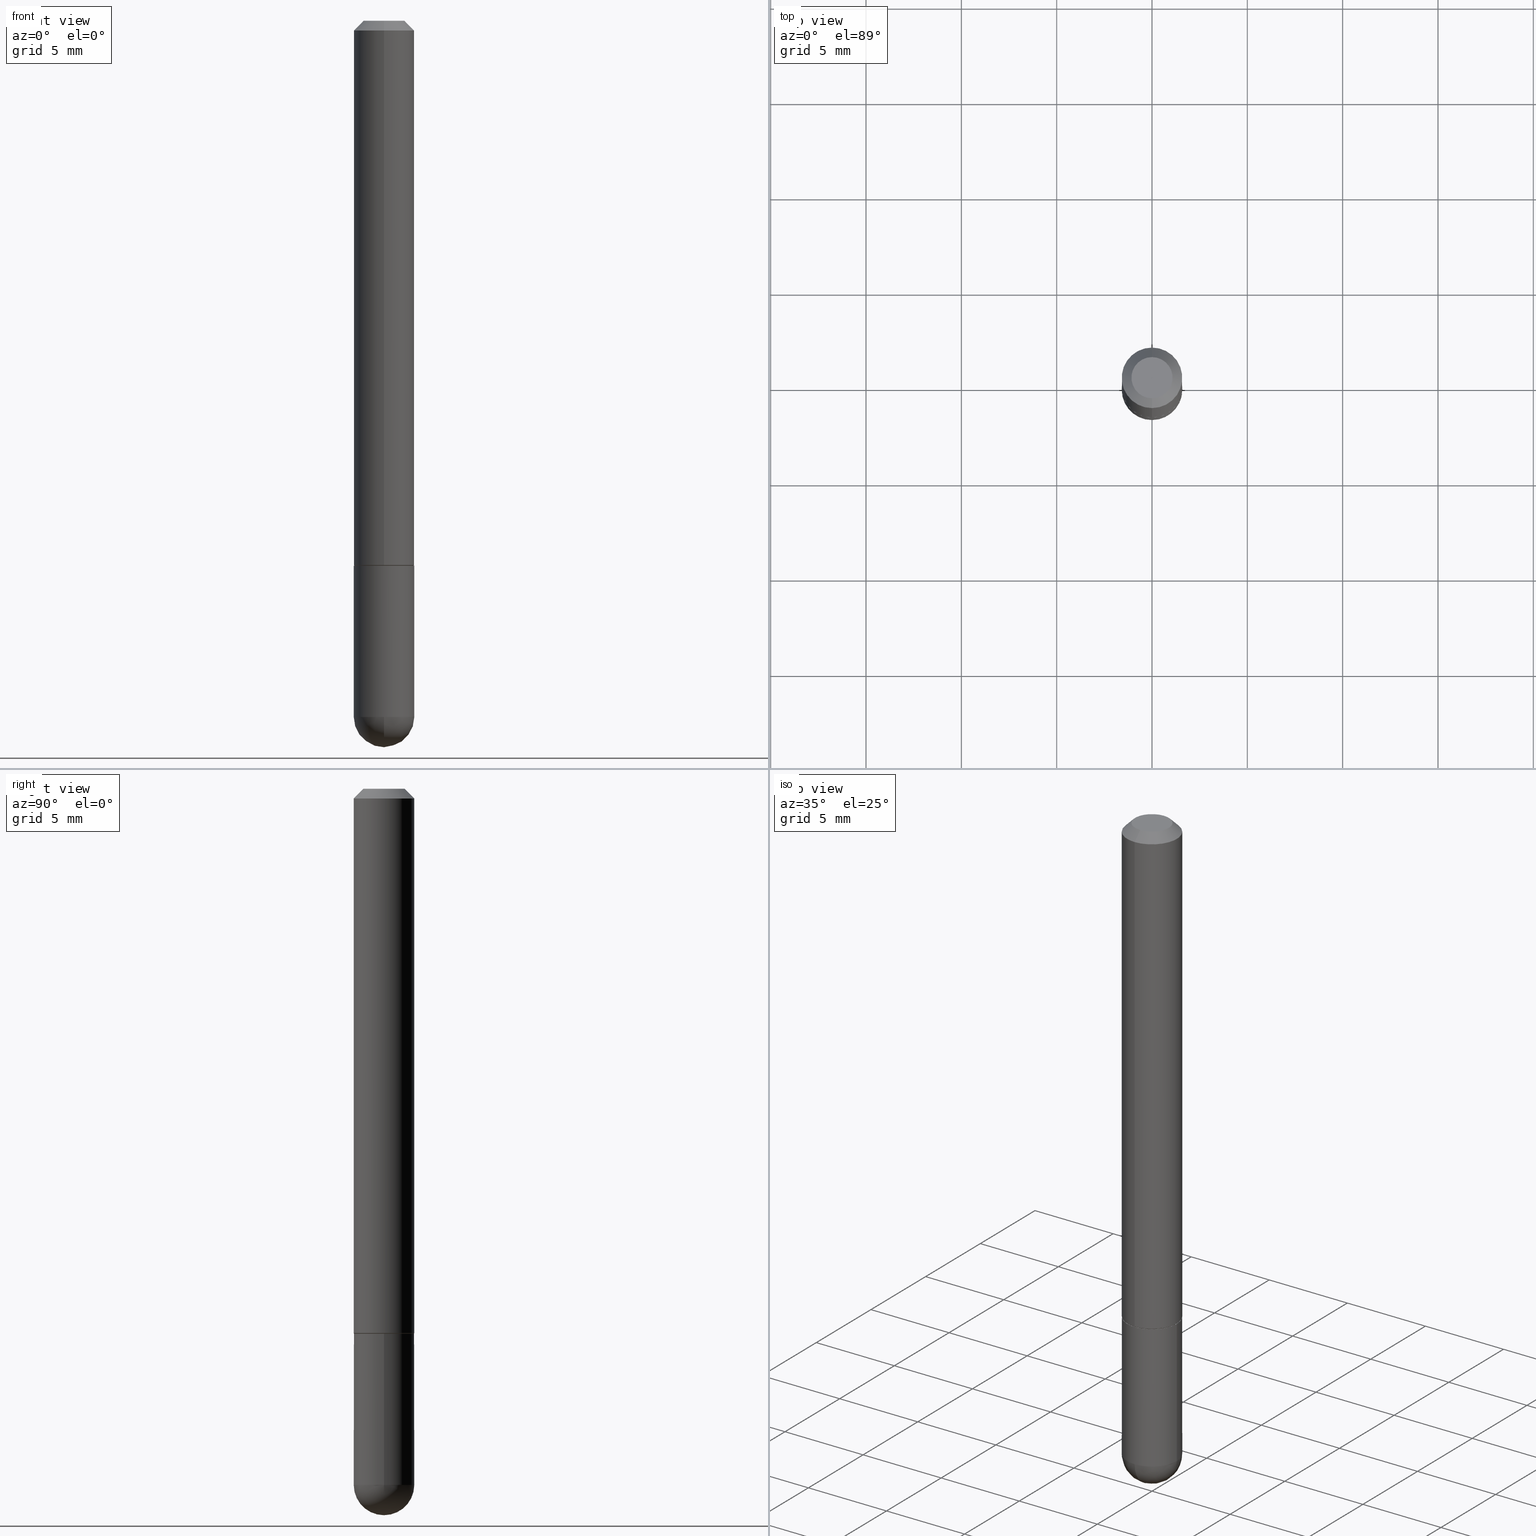
[diagram: canonical four-view strip — front | top / right | iso, engineering-drawing reading convention]
A machine part, canonical four-view strip (front | top / right | iso — engineering-drawing reading convention). The complete STEP part file that produces these views, byte-faithful:
ISO-10303-21;
HEADER;
FILE_DESCRIPTION (( 'STEP AP203' ),
    '1' );
FILE_NAME ('30578.STEP',
    '2024-02-21T16:41:04',
    ( '' ),
    ( '' ),
    'SwSTEP 2.0',
    'SolidWorks 2023',
    '' );
FILE_SCHEMA (( 'CONFIG_CONTROL_DESIGN' ));
ENDSEC;

DATA;
#1 = DIRECTION ( 'NONE',  ( 1.000000000000000000, 0.000000000000000000, 0.000000000000000000 ) ) ;
#2 = EDGE_CURVE ( 'NONE', #178, #175, #369, .T. ) ;
#3 = ORIENTED_EDGE ( 'NONE', *, *, #260, .T. ) ;
#4 = CC_DESIGN_PERSON_AND_ORGANIZATION_ASSIGNMENT ( #93, #224, ( #126 ) ) ;
#5 = CARTESIAN_POINT ( 'NONE',  ( 4.369837824924891688E-16, 0.06149999999999608558, -1.125000000000000222 ) ) ;
#6 = EDGE_LOOP ( 'NONE', ( #204, #3, #399, #188 ) ) ;
#7 = FACE_OUTER_BOUND ( 'NONE', #144, .T. ) ;
#8 = APPROVAL_ROLE ( '' ) ;
#9 = CARTESIAN_POINT ( 'NONE',  ( -4.287811248607198352E-16, -0.06250000000000001388, -0.01999999999999984776 ) ) ;
#10 = EDGE_LOOP ( 'NONE', ( #386, #329, #76, #314, #305 ) ) ;
#11 = VECTOR ( 'NONE', #310, 39.37007874015748143 ) ;
#12 = LOCAL_TIME ( 11, 41, 4.000000000000000000, #28 ) ;
#13 = CONICAL_SURFACE ( 'NONE', #90, 0.06249999999999995143, 0.7853981633974469467 ) ;
#14 = CARTESIAN_POINT ( 'NONE',  ( 0.000000000000000000, 0.000000000000000000, 0.000000000000000000 ) ) ;
#15 = CARTESIAN_POINT ( 'NONE',  ( 4.850752770466322394E-31, -7.040509658471958830E-17, -0.02000000000000006981 ) ) ;
#16 = DIRECTION ( 'NONE',  ( 1.000000000000000000, -6.982962677686269077E-15, 0.000000000000000000 ) ) ;
#17 = DIRECTION ( 'NONE',  ( -6.982962677686265922E-15, -1.000000000000000000, 4.442029257990668187E-15 ) ) ;
#18 = VERTEX_POINT ( 'NONE', #123 ) ;
#19 = ORIENTED_EDGE ( 'NONE', *, *, #198, .F. ) ;
#20 = VECTOR ( 'NONE', #349, 39.37007874015748143 ) ;
#21 = CARTESIAN_POINT ( 'NONE',  ( -0.06249999999999995143, -4.029371255542718167E-15, -1.437500000000000222 ) ) ;
#22 = PLANE ( 'NONE',  #411 ) ;
#23 = CARTESIAN_POINT ( 'NONE',  ( 4.364351673553917187E-16, 0.06249999999999988204, -0.02000000000000029185 ) ) ;
#24 = FACE_OUTER_BOUND ( 'NONE', #242, .T. ) ;
#25 = ORIENTED_EDGE ( 'NONE', *, *, #131, .T. ) ;
#26 = CARTESIAN_POINT ( 'NONE',  ( -6.137781423452536231E-45, 8.908536764955164801E-31, 2.530651102576191747E-16 ) ) ;
#27 = CARTESIAN_POINT ( 'NONE',  ( 0.000000000000000000, 0.000000000000000000, 0.000000000000000000 ) ) ;
#28 = COORDINATED_UNIVERSAL_TIME_OFFSET ( 5, 0, .BEHIND. ) ;
#29 = ADVANCED_FACE ( 'NONE', ( #208 ), #258, .T. ) ;
#30 = CIRCLE ( 'NONE', #269, 0.06150000000000004768 ) ;
#31 =( NAMED_UNIT ( * ) SI_UNIT ( $, .STERADIAN. ) SOLID_ANGLE_UNIT ( ) );
#32 = ADVANCED_FACE ( 'NONE', ( #275 ), #216, .T. ) ;
#33 = ORIENTED_EDGE ( 'NONE', *, *, #260, .F. ) ;
#34 = CARTESIAN_POINT ( 'NONE',  ( -4.287811248607198352E-16, -0.06250000000000001388, -0.01999999999999984776 ) ) ;
#35 = APPROVAL_PERSON_ORGANIZATION ( #346, #395, #412 ) ;
#36 = CIRCLE ( 'NONE', #390, 0.04249999999999968386 ) ;
#37 = APPROVAL_ROLE ( '' ) ;
#38 = DIRECTION ( 'NONE',  ( -1.000000000000000000, 6.982962677686265922E-15, -4.876176775795935793E-29 ) ) ;
#39 = DATE_AND_TIME ( #240, #89 ) ;
#40 = DIRECTION ( 'NONE',  ( 1.000000000000000000, -6.982962677686268288E-15, 0.000000000000000000 ) ) ;
#41 = DIRECTION ( 'NONE',  ( 1.000000000000000000, -6.982962677686267499E-15, 4.876176775795936353E-29 ) ) ;
#42 = ORIENTED_EDGE ( 'NONE', *, *, #248, .T. ) ;
#43 = PERSON_AND_ORGANIZATION_ROLE ( 'classification_officer' ) ;
#44 = DIRECTION ( 'NONE',  ( -4.937700262165222518E-15, -0.7071067811866417196, 0.7071067811864533148 ) ) ;
#45 = DIRECTION ( 'NONE',  ( 1.000000000000000000, -6.982962677686268288E-15, 0.000000000000000000 ) ) ;
#46 = ORIENTED_EDGE ( 'NONE', *, *, #69, .T. ) ;
#47 = AXIS2_PLACEMENT_3D ( 'NONE', #356, #202, #40 ) ;
#48 = DIRECTION ( 'NONE',  ( 2.425376385233152912E-29, -3.520254829235966793E-15, -1.000000000000000000 ) ) ;
#49 = ORIENTED_EDGE ( 'NONE', *, *, #219, .F. ) ;
#50 = EDGE_CURVE ( 'NONE', #212, #352, #342, .T. ) ;
#51 = DIRECTION ( 'NONE',  ( 2.438088387897960049E-29, -3.491481338843145188E-15, -1.000000000000000000 ) ) ;
#52 = FACE_OUTER_BOUND ( 'NONE', #6, .T. ) ;
#53 = ORIENTED_EDGE ( 'NONE', *, *, #50, .F. ) ;
#54 = APPROVAL ( #111, 'UNSPECIFIED' ) ;
#55 = CARTESIAN_POINT ( 'NONE',  ( 3.184241630977247611E-29, -5.493186792727071849E-15, -1.437500000000000000 ) ) ;
#56 = AXIS2_PLACEMENT_3D ( 'NONE', #243, #365, #79 ) ;
#57 = ADVANCED_FACE ( 'NONE', ( #125 ), #22, .F. ) ;
#58 = EDGE_LOOP ( 'NONE', ( #181, #338 ) ) ;
#59 = CALENDAR_DATE ( 2024, 21, 2 ) ;
#60 = MECHANICAL_CONTEXT ( 'NONE', #62, 'mechanical' ) ;
#61 = MANIFOLD_SOLID_BREP ( 'Body-Move/Copy2[1]', #303 ) ;
#62 = APPLICATION_CONTEXT ( 'configuration controlled 3d designs of mechanical parts and assemblies' ) ;
#63 = MANIFOLD_SOLID_BREP ( 'Body-Move/Copy2[2]', #159 ) ;
#64 = DIRECTION ( 'NONE',  ( 4.937700262164540942E-15, 0.7071067811865441310, -0.7071067811865509034 ) ) ;
#65 = AXIS2_PLACEMENT_3D ( 'NONE', #72, #267, #368 ) ;
#66 = CIRCLE ( 'NONE', #380, 0.06250000000000018041 ) ;
#67 = EDGE_CURVE ( 'NONE', #250, #103, #66, .T. ) ;
#68 = SHAPE_DEFINITION_REPRESENTATION ( #151, #355 ) ;
#69 = EDGE_CURVE ( 'NONE', #191, #283, #400, .T. ) ;
#70 = DATE_TIME_ROLE ( 'creation_date' ) ;
#71 = CARTESIAN_POINT ( 'NONE',  ( -6.137781423452536231E-45, 8.908536764955164801E-31, 2.530651102576191747E-16 ) ) ;
#72 = CARTESIAN_POINT ( 'NONE',  ( 2.728548433387296781E-29, -3.960286682890462988E-15, -1.124999999999999778 ) ) ;
#73 = EDGE_LOOP ( 'NONE', ( #33, #278, #370, #378 ) ) ;
#74 = AXIS2_PLACEMENT_3D ( 'NONE', #15, #372, #389 ) ;
#75 = DIRECTION ( 'NONE',  ( -2.425376385233152632E-29, 3.520254829235967188E-15, 1.000000000000000000 ) ) ;
#76 = ORIENTED_EDGE ( 'NONE', *, *, #136, .T. ) ;
#77 = DIRECTION ( 'NONE',  ( -2.425376385233152632E-29, 3.520254829235967188E-15, 1.000000000000000000 ) ) ;
#78 = ORIENTED_EDGE ( 'NONE', *, *, #364, .T. ) ;
#79 = DIRECTION ( 'NONE',  ( 1.000000000000000000, -6.982962677686269077E-15, 0.000000000000000000 ) ) ;
#80 = DIRECTION ( 'NONE',  ( 6.982962677686265922E-15, 1.000000000000000000, -3.520254829235966793E-15 ) ) ;
#81 = DIRECTION ( 'NONE',  ( -2.445468806185136597E-29, 3.491481338843145583E-15, 1.000000000000000000 ) ) ;
#82 = ORIENTED_EDGE ( 'NONE', *, *, #316, .T. ) ;
#83 = EDGE_CURVE ( 'NONE', #250, #101, #391, .T. ) ;
#84 = CARTESIAN_POINT ( 'NONE',  ( -4.294522046776783901E-16, -0.06150000000000400979, -1.124999999999999556 ) ) ;
#85 = ORIENTED_EDGE ( 'NONE', *, *, #266, .F. ) ;
#86 = CARTESIAN_POINT ( 'NONE',  ( 0.06249999999999997918, -4.364351673553915708E-16, 3.047610484872459170E-30 ) ) ;
#87 = CARTESIAN_POINT ( 'NONE',  ( 2.726123057002063865E-29, -3.956766428061227255E-15, -1.124000000000000110 ) ) ;
#88 = VECTOR ( 'NONE', #236, 39.37007874015748143 ) ;
#89 = LOCAL_TIME ( 11, 41, 4.000000000000000000, #98 ) ;
#90 = AXIS2_PLACEMENT_3D ( 'NONE', #392, #274, #326 ) ;
#91 = CYLINDRICAL_SURFACE ( 'NONE', #374, 0.06250000000000002776 ) ;
#92 = ORIENTED_EDGE ( 'NONE', *, *, #219, .T. ) ;
#93 = PERSON_AND_ORGANIZATION ( #251, #375 ) ;
#94 = EDGE_CURVE ( 'NONE', #178, #352, #186, .T. ) ;
#95 = SECURITY_CLASSIFICATION ( '', '', #168 ) ;
#96 = CARTESIAN_POINT ( 'NONE',  ( -0.06249999999999997918, 4.440892098500624683E-16, -3.074334431409315413E-30 ) ) ;
#97 =( CONVERSION_BASED_UNIT ( 'INCH', #196 ) LENGTH_UNIT ( ) NAMED_UNIT ( #256 ) );
#98 = COORDINATED_UNIVERSAL_TIME_OFFSET ( 5, 0, .BEHIND. ) ;
#99 = LOCAL_TIME ( 11, 41, 4.000000000000000000, #295 ) ;
#100 = CALENDAR_DATE ( 2024, 21, 2 ) ;
#101 = VERTEX_POINT ( 'NONE', #135 ) ;
#102 = PLANE ( 'NONE',  #65 ) ;
#103 = VERTEX_POINT ( 'NONE', #205 ) ;
#104 = PERSON_AND_ORGANIZATION ( #251, #375 ) ;
#105 = CARTESIAN_POINT ( 'NONE',  ( 4.850752770466322394E-31, -7.040509658471958830E-17, -0.02000000000000006981 ) ) ;
#106 = CIRCLE ( 'NONE', #164, 0.06249999999999995143 ) ;
#107 = UNCERTAINTY_MEASURE_WITH_UNIT (LENGTH_MEASURE( 1.000000000000000082E-05 ), #97, 'distance_accuracy_value', 'NONE');
#108 = DIRECTION ( 'NONE',  ( 1.000000000000000000, -6.982962677686268288E-15, 0.000000000000000000 ) ) ;
#109 = ORIENTED_EDGE ( 'NONE', *, *, #377, .F. ) ;
#110 = VECTOR ( 'NONE', #44, 39.37007874015748143 ) ;
#111 = APPROVAL_STATUS ( 'not_yet_approved' ) ;
#112 = CARTESIAN_POINT ( 'NONE',  ( 2.967759138016640869E-16, 0.04249999999999968386, -2.307827511371789537E-17 ) ) ;
#113 = DIRECTION ( 'NONE',  ( -6.982962677686265922E-15, -1.000000000000000000, 3.551402391763545142E-15 ) ) ;
#114 = DIRECTION ( 'NONE',  ( -2.425376385233152632E-29, 3.520254829235967188E-15, 1.000000000000000000 ) ) ;
#115 = CARTESIAN_POINT ( 'NONE',  ( 4.440892098500628134E-16, 0.06250000000000002776, -2.200159268272480725E-16 ) ) ;
#116 = DIRECTION ( 'NONE',  ( -1.000000000000000000, 6.982962677686265922E-15, -4.883557194083112340E-29 ) ) ;
#117 = DIRECTION ( 'NONE',  ( -2.425376385233152632E-29, 3.520254829235967188E-15, 1.000000000000000000 ) ) ;
#118 = EDGE_CURVE ( 'NONE', #101, #357, #195, .T. ) ;
#119 = EDGE_CURVE ( 'NONE', #212, #283, #120, .T. ) ;
#120 = LINE ( 'NONE', #241, #180 ) ;
#121 = EDGE_LOOP ( 'NONE', ( #239, #299, #322, #363 ) ) ;
#122 = CIRCLE ( 'NONE', #143, 0.04249999999999968386 ) ;
#123 = CARTESIAN_POINT ( 'NONE',  ( 3.666055405785279275E-16, 0.04249999999999968386, 1.034542800150916889E-16 ) ) ;
#124 = ADVANCED_FACE ( 'NONE', ( #387 ), #141, .F. ) ;
#125 = FACE_OUTER_BOUND ( 'NONE', #170, .T. ) ;
#126 = PRODUCT ( '30578', '30578', '', ( #60 ) ) ;
#127 = VECTOR ( 'NONE', #388, 39.37007874015748143 ) ;
#128 = AXIS2_PLACEMENT_3D ( 'NONE', #336, #116, #244 ) ;
#129 =( NAMED_UNIT ( * ) PLANE_ANGLE_UNIT ( ) SI_UNIT ( $, .RADIAN. ) );
#130 = CARTESIAN_POINT ( 'NONE',  ( 0.000000000000000000, 0.000000000000000000, 0.000000000000000000 ) ) ;
#131 = EDGE_CURVE ( 'NONE', #283, #163, #325, .T. ) ;
#132 = DIRECTION ( 'NONE',  ( -2.425376385233152632E-29, 3.520254829235967188E-15, 1.000000000000000000 ) ) ;
#133 = APPROVAL_STATUS ( 'not_yet_approved' ) ;
#134 = APPLICATION_PROTOCOL_DEFINITION ( 'international standard', 'config_control_design', 1994, #62 ) ;
#135 = CARTESIAN_POINT ( 'NONE',  ( 4.364351673554256397E-16, 0.06249999999999480971, -1.437500000000000444 ) ) ;
#136 = EDGE_CURVE ( 'NONE', #103, #394, #155, .T. ) ;
#137 = PERSON_AND_ORGANIZATION ( #251, #375 ) ;
#138 = DIRECTION ( 'NONE',  ( 5.024295867788748699E-15, 0.7071067811866466046, 0.7071067811864484298 ) ) ;
#139 = ORIENTED_EDGE ( 'NONE', *, *, #376, .F. ) ;
#140 = APPROVAL_DATE_TIME ( #234, #263 ) ;
#141 = PLANE ( 'NONE',  #304 ) ;
#142 = AXIS2_PLACEMENT_3D ( 'NONE', #313, #217, #252 ) ;
#143 = AXIS2_PLACEMENT_3D ( 'NONE', #26, #166, #291 ) ;
#144 = EDGE_LOOP ( 'NONE', ( #308, #193, #85, #344 ) ) ;
#145 = AXIS2_PLACEMENT_3D ( 'NONE', #362, #77, #182 ) ;
#146 = DATE_AND_TIME ( #327, #12 ) ;
#147 = SPHERICAL_SURFACE ( 'NONE', #128, 0.06250000000000018041 ) ;
#148 = ORIENTED_EDGE ( 'NONE', *, *, #2, .T. ) ;
#149 = FACE_OUTER_BOUND ( 'NONE', #73, .T. ) ;
#150 = ORIENTED_EDGE ( 'NONE', *, *, #280, .T. ) ;
#151 = PRODUCT_DEFINITION_SHAPE ( 'NONE', 'NONE',  #162 ) ;
#152 = CC_DESIGN_PERSON_AND_ORGANIZATION_ASSIGNMENT ( #104, #383, ( #223 ) ) ;
#153 = CARTESIAN_POINT ( 'NONE',  ( 2.728548433387296781E-29, -3.960286682890462988E-15, -1.124999999999999778 ) ) ;
#154 = VECTOR ( 'NONE', #64, 39.37007874015748143 ) ;
#155 = CIRCLE ( 'NONE', #47, 0.06249999999999995143 ) ;
#156 = LINE ( 'NONE', #96, #20 ) ;
#157 = DIRECTION ( 'NONE',  ( -2.425376385233152632E-29, 3.520254829235967188E-15, 1.000000000000000000 ) ) ;
#158 = CYLINDRICAL_SURFACE ( 'NONE', #142, 0.06249999999999997918 ) ;
#159 = CLOSED_SHELL ( 'NONE', ( #345, #340, #172, #29, #229, #408, #161, #124 ) ) ;
#160 = CARTESIAN_POINT ( 'NONE',  ( 0.06249999999999995143, -4.909895632748172453E-15, -1.437500000000000222 ) ) ;
#161 = ADVANCED_FACE ( 'NONE', ( #246 ), #102, .F. ) ;
#162 = PRODUCT_DEFINITION ( 'UNKNOWN', '', #223, #226 ) ;
#163 = VERTEX_POINT ( 'NONE', #177 ) ;
#164 = AXIS2_PLACEMENT_3D ( 'NONE', #183, #331, #45 ) ;
#165 = CC_DESIGN_APPROVAL ( #395, ( #162 ) ) ;
#166 = DIRECTION ( 'NONE',  ( -2.425376385233152632E-29, 3.520254829235967188E-15, 1.000000000000000000 ) ) ;
#167 = AXIS2_PLACEMENT_3D ( 'NONE', #213, #179, #328 ) ;
#168 = SECURITY_CLASSIFICATION_LEVEL ( 'unclassified' ) ;
#169 = DIRECTION ( 'NONE',  ( -2.425376385233152632E-29, 3.520254829235967188E-15, 1.000000000000000000 ) ) ;
#170 = EDGE_LOOP ( 'NONE', ( #92, #42 ) ) ;
#171 =( GEOMETRIC_REPRESENTATION_CONTEXT ( 3 ) GLOBAL_UNCERTAINTY_ASSIGNED_CONTEXT ( ( #107 ) ) GLOBAL_UNIT_ASSIGNED_CONTEXT ( ( #97, #129, #31 ) ) REPRESENTATION_CONTEXT ( 'NONE', 'WORKASPACE' ) );
#172 = ADVANCED_FACE ( 'NONE', ( #271 ), #13, .T. ) ;
#173 = PERSON_AND_ORGANIZATION ( #251, #375 ) ;
#174 = DIRECTION ( 'NONE',  ( -6.982962677686265922E-15, -1.000000000000000000, 3.551402391763545142E-15 ) ) ;
#175 = VERTEX_POINT ( 'NONE', #210 ) ;
#176 = APPROVAL_STATUS ( 'not_yet_approved' ) ;
#177 = CARTESIAN_POINT ( 'NONE',  ( 4.364351673553917187E-16, 0.06249999999999988204, -0.02000000000000029185 ) ) ;
#178 = VERTEX_POINT ( 'NONE', #397 ) ;
#179 = DIRECTION ( 'NONE',  ( 1.000000000000000000, -6.982962677686265922E-15, 4.883557194083112340E-29 ) ) ;
#180 = VECTOR ( 'NONE', #359, 39.37007874015748143 ) ;
#181 = ORIENTED_EDGE ( 'NONE', *, *, #316, .F. ) ;
#182 = DIRECTION ( 'NONE',  ( -6.982962677686265133E-15, -1.000000000000000000, 4.370956789862812472E-15 ) ) ;
#183 = CARTESIAN_POINT ( 'NONE',  ( 3.515361408891134418E-29, -5.019004424587023131E-15, -1.437500000000000222 ) ) ;
#184 = ORIENTED_EDGE ( 'NONE', *, *, #354, .F. ) ;
#185 = CC_DESIGN_PERSON_AND_ORGANIZATION_ASSIGNMENT ( #384, #43, ( #95 ) ) ;
#186 = LINE ( 'NONE', #5, #358 ) ;
#187 = CARTESIAN_POINT ( 'NONE',  ( 0.000000000000000000, 0.000000000000000000, 0.000000000000000000 ) ) ;
#188 = ORIENTED_EDGE ( 'NONE', *, *, #119, .F. ) ;
#189 = DIRECTION ( 'NONE',  ( -2.425376385233152632E-29, 3.520254829235967188E-15, 1.000000000000000000 ) ) ;
#190 = AXIS2_PLACEMENT_3D ( 'NONE', #334, #306, #16 ) ;
#191 = VERTEX_POINT ( 'NONE', #302 ) ;
#192 = EDGE_CURVE ( 'NONE', #352, #212, #301, .T. ) ;
#193 = ORIENTED_EDGE ( 'NONE', *, *, #67, .T. ) ;
#194 = APPROVAL_DATE_TIME ( #381, #395 ) ;
#195 = CIRCLE ( 'NONE', #237, 0.06249999999999995143 ) ;
#196 = LENGTH_MEASURE_WITH_UNIT ( LENGTH_MEASURE( 0.02539999999999999897 ), #409 );
#197 = PERSON_AND_ORGANIZATION_ROLE ( 'design_supplier' ) ;
#198 = EDGE_CURVE ( 'NONE', #175, #212, #330, .T. ) ;
#199 = DIRECTION ( 'NONE',  ( -2.425376385233152632E-29, 3.520254829235967188E-15, 1.000000000000000000 ) ) ;
#200 = APPROVAL_DATE_TIME ( #39, #54 ) ;
#201 = CONICAL_SURFACE ( 'NONE', #320, 0.06150000000000004768, 0.7853981633975849475 ) ;
#202 = DIRECTION ( 'NONE',  ( -2.445468806185136597E-29, 3.491481338843145583E-15, 1.000000000000000000 ) ) ;
#203 = CIRCLE ( 'NONE', #228, 0.06249999999999995143 ) ;
#204 = ORIENTED_EDGE ( 'NONE', *, *, #50, .T. ) ;
#205 = CARTESIAN_POINT ( 'NONE',  ( -4.440892098500294840E-16, -0.06250000000000532907, -1.437500000000000000 ) ) ;
#206 = ORIENTED_EDGE ( 'NONE', *, *, #192, .F. ) ;
#207 = DIRECTION ( 'NONE',  ( -2.445468806185136597E-29, 3.491481338843145583E-15, 1.000000000000000000 ) ) ;
#208 = FACE_OUTER_BOUND ( 'NONE', #268, .T. ) ;
#209 = CARTESIAN_POINT ( 'NONE',  ( 3.339755826017505008E-29, -5.707577355157432999E-15, -1.500000000000000222 ) ) ;
#210 = CARTESIAN_POINT ( 'NONE',  ( -4.294522046776783901E-16, -0.06150000000000400979, -1.124999999999999556 ) ) ;
#211 = DIRECTION ( 'NONE',  ( -2.445468806185136597E-29, 3.491481338843145583E-15, 1.000000000000000000 ) ) ;
#212 = VERTEX_POINT ( 'NONE', #296 ) ;
#213 = CARTESIAN_POINT ( 'NONE',  ( 3.184241630977247611E-29, -5.493186792727071849E-15, -1.437500000000000000 ) ) ;
#214 = ORIENTED_EDGE ( 'NONE', *, *, #290, .T. ) ;
#215 = ADVANCED_FACE ( 'NONE', ( #7 ), #147, .T. ) ;
#216 = SPHERICAL_SURFACE ( 'NONE', #312, 0.06250000000000018041 ) ;
#217 = DIRECTION ( 'NONE',  ( -2.445468806185136597E-29, 3.491481338843145583E-15, 1.000000000000000000 ) ) ;
#218 = AXIS2_PLACEMENT_3D ( 'NONE', #393, #298, #113 ) ;
#219 = EDGE_CURVE ( 'NONE', #247, #318, #235, .T. ) ;
#220 = CC_DESIGN_DATE_AND_TIME_ASSIGNMENT ( #146, #70, ( #162 ) ) ;
#221 = DIRECTION ( 'NONE',  ( -6.982962677686266711E-15, -1.000000000000000000, 3.520254829235967582E-15 ) ) ;
#222 = APPLICATION_PROTOCOL_DEFINITION ( 'international standard', 'config_control_design', 1994, #309 ) ;
#223 = PRODUCT_DEFINITION_FORMATION_WITH_SPECIFIED_SOURCE ( 'ANY', '', #126, .NOT_KNOWN. ) ;
#224 = PERSON_AND_ORGANIZATION_ROLE ( 'design_owner' ) ;
#225 = PERSON_AND_ORGANIZATION_ROLE ( 'creator' ) ;
#226 = DESIGN_CONTEXT ( 'detailed design', #309, 'design' ) ;
#227 = DIRECTION ( 'NONE',  ( -6.982962677686266711E-15, -1.000000000000000000, 3.520254829235967582E-15 ) ) ;
#228 = AXIS2_PLACEMENT_3D ( 'NONE', #233, #81, #108 ) ;
#229 = ADVANCED_FACE ( 'NONE', ( #149 ), #276, .T. ) ;
#230 = EDGE_LOOP ( 'NONE', ( #139, #46, #25, #109 ) ) ;
#231 = DATE_AND_TIME ( #351, #323 ) ;
#232 = DIRECTION ( 'NONE',  ( -7.105427357601001859E-15, -1.000000000000000000, 0.000000000000000000 ) ) ;
#233 = CARTESIAN_POINT ( 'NONE',  ( 3.515361408891134418E-29, -5.019004424587023131E-15, -1.437500000000000222 ) ) ;
#234 = DATE_AND_TIME ( #100, #99 ) ;
#235 = CIRCLE ( 'NONE', #190, 0.06250000000000001388 ) ;
#236 = DIRECTION ( 'NONE',  ( -4.851104656540957175E-15, -0.7071067811865490160, -0.7071067811865460184 ) ) ;
#237 = AXIS2_PLACEMENT_3D ( 'NONE', #264, #207, #366 ) ;
#238 = FACE_OUTER_BOUND ( 'NONE', #332, .T. ) ;
#239 = ORIENTED_EDGE ( 'NONE', *, *, #67, .F. ) ;
#240 = CALENDAR_DATE ( 2024, 21, 2 ) ;
#241 = CARTESIAN_POINT ( 'NONE',  ( -4.364351673553918666E-16, -0.06250000000000002776, 2.200159268272480725E-16 ) ) ;
#242 = EDGE_LOOP ( 'NONE', ( #82, #289, #53, #19 ) ) ;
#243 = CARTESIAN_POINT ( 'NONE',  ( 2.751152406958278111E-29, -3.927916506198538435E-15, -1.124999999999999778 ) ) ;
#244 = DIRECTION ( 'NONE',  ( 6.982962677686265922E-15, 1.000000000000000000, -4.370956789862807739E-15 ) ) ;
#245 = ORIENTED_EDGE ( 'NONE', *, *, #376, .T. ) ;
#246 = FACE_OUTER_BOUND ( 'NONE', #58, .T. ) ;
#247 = VERTEX_POINT ( 'NONE', #382 ) ;
#248 = EDGE_CURVE ( 'NONE', #318, #247, #406, .T. ) ;
#249 = CARTESIAN_POINT ( 'NONE',  ( 4.440892098500770129E-16, 0.06249999999999616279, -1.124000000000000332 ) ) ;
#250 = VERTEX_POINT ( 'NONE', #209 ) ;
#251 = PERSON ( 'UNSPECIFIED', 'UNSPECIFIED', 'UNSPECIFIED', ('UNSPECIFIED'), ('UNSPECIFIED'), ('UNSPECIFIED') ) ;
#252 = DIRECTION ( 'NONE',  ( 1.000000000000000000, -6.982962677686267499E-15, 4.876176775795936353E-29 ) ) ;
#253 = DIRECTION ( 'NONE',  ( -6.982962677686265133E-15, -1.000000000000000000, 4.370956789862812472E-15 ) ) ;
#254 = CONICAL_SURFACE ( 'NONE', #350, 0.06150000000000004768, 0.7853981633975849475 ) ;
#255 = CC_DESIGN_PERSON_AND_ORGANIZATION_ASSIGNMENT ( #137, #197, ( #223 ) ) ;
#256 = DIMENSIONAL_EXPONENTS ( 1.000000000000000000, 0.000000000000000000, 0.000000000000000000, 0.000000000000000000, 0.000000000000000000, 0.000000000000000000, 0.000000000000000000 ) ;
#257 = CARTESIAN_POINT ( 'NONE',  ( 2.728548433387296781E-29, -3.960286682890462988E-15, -1.124999999999999778 ) ) ;
#258 = CONICAL_SURFACE ( 'NONE', #74, 0.06249999999999995143, 0.7853981633974469467 ) ;
#259 = COORDINATED_UNIVERSAL_TIME_OFFSET ( 5, 0, .BEHIND. ) ;
#260 = EDGE_CURVE ( 'NONE', #352, #163, #396, .T. ) ;
#261 = CC_DESIGN_APPROVAL ( #263, ( #95 ) ) ;
#262 = ORIENTED_EDGE ( 'NONE', *, *, #198, .T. ) ;
#263 = APPROVAL ( #176, 'UNSPECIFIED' ) ;
#264 = CARTESIAN_POINT ( 'NONE',  ( 3.515361408891134418E-29, -5.019004424587023131E-15, -1.437500000000000222 ) ) ;
#265 = ORIENTED_EDGE ( 'NONE', *, *, #317, .F. ) ;
#266 = EDGE_CURVE ( 'NONE', #357, #103, #203, .T. ) ;
#267 = DIRECTION ( 'NONE',  ( -2.425376385233152912E-29, 3.520254829235966793E-15, 1.000000000000000000 ) ) ;
#268 = EDGE_LOOP ( 'NONE', ( #401, #265, #335, #150 ) ) ;
#269 = AXIS2_PLACEMENT_3D ( 'NONE', #398, #117, #17 ) ;
#270 = AXIS2_PLACEMENT_3D ( 'NONE', #27, #347, #1 ) ;
#271 = FACE_OUTER_BOUND ( 'NONE', #230, .T. ) ;
#272 = AXIS2_PLACEMENT_3D ( 'NONE', #153, #114, #403 ) ;
#273 = ORIENTED_EDGE ( 'NONE', *, *, #317, .T. ) ;
#274 = DIRECTION ( 'NONE',  ( 2.425376385233152632E-29, -3.520254829235967188E-15, -1.000000000000000000 ) ) ;
#275 = FACE_OUTER_BOUND ( 'NONE', #121, .T. ) ;
#276 = CYLINDRICAL_SURFACE ( 'NONE', #292, 0.06250000000000002776 ) ;
#277 = CARTESIAN_POINT ( 'NONE',  ( 2.728548433387296781E-29, -3.960286682890462988E-15, -1.124999999999999778 ) ) ;
#278 = ORIENTED_EDGE ( 'NONE', *, *, #192, .T. ) ;
#279 = ADVANCED_FACE ( 'NONE', ( #238 ), #360, .T. ) ;
#280 = EDGE_CURVE ( 'NONE', #163, #283, #285, .T. ) ;
#281 = APPROVAL_PERSON_ORGANIZATION ( #300, #54, #37 ) ;
#282 = DIRECTION ( 'NONE',  ( -6.982962677686265922E-15, -1.000000000000000000, 4.442029257990668187E-15 ) ) ;
#283 = VERTEX_POINT ( 'NONE', #34 ) ;
#284 = CARTESIAN_POINT ( 'NONE',  ( 4.364351673554192795E-16, 0.06249999999999608646, -1.125000000000000222 ) ) ;
#285 = CIRCLE ( 'NONE', #218, 0.06249999999999995143 ) ;
#286 = APPROVAL_PERSON_ORGANIZATION ( #173, #263, #8 ) ;
#287 = PRODUCT_RELATED_PRODUCT_CATEGORY ( 'detail', '', ( #126 ) ) ;
#288 = FACE_OUTER_BOUND ( 'NONE', #361, .T. ) ;
#289 = ORIENTED_EDGE ( 'NONE', *, *, #94, .T. ) ;
#290 = EDGE_CURVE ( 'NONE', #394, #101, #106, .T. ) ;
#291 = DIRECTION ( 'NONE',  ( -6.982962677686265922E-15, -1.000000000000000000, 3.520254829235967188E-15 ) ) ;
#292 = AXIS2_PLACEMENT_3D ( 'NONE', #130, #169, #227 ) ;
#293 = AXIS2_PLACEMENT_3D ( 'NONE', #87, #157, #253 ) ;
#294 = CC_DESIGN_PERSON_AND_ORGANIZATION_ASSIGNMENT ( #315, #225, ( #162 ) ) ;
#295 = COORDINATED_UNIVERSAL_TIME_OFFSET ( 5, 0, .BEHIND. ) ;
#296 = CARTESIAN_POINT ( 'NONE',  ( -4.364351673553652426E-16, -0.06250000000000406619, -1.123999999999999888 ) ) ;
#297 = CARTESIAN_POINT ( 'NONE',  ( 3.184241630977247611E-29, -5.493186792727071849E-15, -1.437500000000000000 ) ) ;
#298 = DIRECTION ( 'NONE',  ( -2.425376385233152632E-29, 3.520254829235967188E-15, 1.000000000000000000 ) ) ;
#299 = ORIENTED_EDGE ( 'NONE', *, *, #83, .T. ) ;
#300 = PERSON_AND_ORGANIZATION ( #251, #375 ) ;
#301 = CIRCLE ( 'NONE', #145, 0.06250000000000012490 ) ;
#302 = CARTESIAN_POINT ( 'NONE',  ( -3.601761448830038135E-16, -0.04249999999999968386, 4.026759405001466481E-16 ) ) ;
#303 = CLOSED_SHELL ( 'NONE', ( #279, #215, #32, #57, #333 ) ) ;
#304 = AXIS2_PLACEMENT_3D ( 'NONE', #112, #48, #80 ) ;
#305 = ORIENTED_EDGE ( 'NONE', *, *, #248, .F. ) ;
#306 = DIRECTION ( 'NONE',  ( -2.445468806185136597E-29, 3.491481338843145583E-15, 1.000000000000000000 ) ) ;
#307 = ORIENTED_EDGE ( 'NONE', *, *, #94, .F. ) ;
#308 = ORIENTED_EDGE ( 'NONE', *, *, #83, .F. ) ;
#309 = APPLICATION_CONTEXT ( 'configuration controlled 3d designs of mechanical parts and assemblies' ) ;
#310 = DIRECTION ( 'NONE',  ( -2.445468806185136877E-29, 3.491481338843145188E-15, 1.000000000000000000 ) ) ;
#311 = EDGE_LOOP ( 'NONE', ( #273, #245 ) ) ;
#312 = AXIS2_PLACEMENT_3D ( 'NONE', #55, #341, #404 ) ;
#313 = CARTESIAN_POINT ( 'NONE',  ( 0.000000000000000000, 0.000000000000000000, 0.000000000000000000 ) ) ;
#314 = ORIENTED_EDGE ( 'NONE', *, *, #354, .T. ) ;
#315 = PERSON_AND_ORGANIZATION ( #251, #375 ) ;
#316 = EDGE_CURVE ( 'NONE', #175, #178, #30, .T. ) ;
#317 = EDGE_CURVE ( 'NONE', #18, #191, #36, .T. ) ;
#318 = VERTEX_POINT ( 'NONE', #373 ) ;
#319 = AXIS2_PLACEMENT_3D ( 'NONE', #105, #75, #174 ) ;
#320 = AXIS2_PLACEMENT_3D ( 'NONE', #257, #132, #348 ) ;
#321 = DIRECTION ( 'NONE',  ( -6.982962677686265922E-15, -1.000000000000000000, 3.520254829235967188E-15 ) ) ;
#322 = ORIENTED_EDGE ( 'NONE', *, *, #290, .F. ) ;
#323 = LOCAL_TIME ( 11, 41, 4.000000000000000000, #324 ) ;
#324 = COORDINATED_UNIVERSAL_TIME_OFFSET ( 5, 0, .BEHIND. ) ;
#325 = CIRCLE ( 'NONE', #319, 0.06249999999999995143 ) ;
#326 = DIRECTION ( 'NONE',  ( 6.982962677686265922E-15, 1.000000000000000000, -3.551402391763545142E-15 ) ) ;
#327 = CALENDAR_DATE ( 2024, 21, 2 ) ;
#328 = DIRECTION ( 'NONE',  ( 6.982962677686266711E-15, 1.000000000000000000, 0.000000000000000000 ) ) ;
#329 = ORIENTED_EDGE ( 'NONE', *, *, #266, .T. ) ;
#330 = LINE ( 'NONE', #84, #110 ) ;
#331 = DIRECTION ( 'NONE',  ( -2.445468806185136597E-29, 3.491481338843145583E-15, 1.000000000000000000 ) ) ;
#332 = EDGE_LOOP ( 'NONE', ( #367, #78, #49, #184, #214 ) ) ;
#333 = ADVANCED_FACE ( 'NONE', ( #337 ), #158, .T. ) ;
#334 = CARTESIAN_POINT ( 'NONE',  ( 2.751152406958278111E-29, -3.927916506198538435E-15, -1.124999999999999778 ) ) ;
#335 = ORIENTED_EDGE ( 'NONE', *, *, #377, .T. ) ;
#336 = CARTESIAN_POINT ( 'NONE',  ( 3.184241630977247611E-29, -5.493186792727071849E-15, -1.437500000000000000 ) ) ;
#337 = FACE_OUTER_BOUND ( 'NONE', #10, .T. ) ;
#338 = ORIENTED_EDGE ( 'NONE', *, *, #2, .F. ) ;
#339 = CC_DESIGN_DATE_AND_TIME_ASSIGNMENT ( #231, #353, ( #95 ) ) ;
#340 = ADVANCED_FACE ( 'NONE', ( #52 ), #91, .T. ) ;
#341 = DIRECTION ( 'NONE',  ( -1.000000000000000000, 6.982962677686265922E-15, -4.883557194083112340E-29 ) ) ;
#342 = CIRCLE ( 'NONE', #293, 0.06250000000000012490 ) ;
#343 = AXIS2_PLACEMENT_3D ( 'NONE', #14, #211, #41 ) ;
#344 = ORIENTED_EDGE ( 'NONE', *, *, #118, .F. ) ;
#345 = ADVANCED_FACE ( 'NONE', ( #24 ), #254, .T. ) ;
#346 = PERSON_AND_ORGANIZATION ( #251, #375 ) ;
#347 = DIRECTION ( 'NONE',  ( 0.000000000000000000, 0.000000000000000000, 1.000000000000000000 ) ) ;
#348 = DIRECTION ( 'NONE',  ( -6.982962677686265922E-15, -1.000000000000000000, 4.442029257990668187E-15 ) ) ;
#349 = DIRECTION ( 'NONE',  ( -2.445468806185136877E-29, 3.491481338843145188E-15, 1.000000000000000000 ) ) ;
#350 = AXIS2_PLACEMENT_3D ( 'NONE', #277, #189, #282 ) ;
#351 = CALENDAR_DATE ( 2024, 21, 2 ) ;
#352 = VERTEX_POINT ( 'NONE', #249 ) ;
#353 = DATE_TIME_ROLE ( 'classification_date' ) ;
#354 = EDGE_CURVE ( 'NONE', #394, #247, #371, .T. ) ;
#355 = ADVANCED_BREP_SHAPE_REPRESENTATION ( '30578', ( #61, #63, #270 ), #171 ) ;
#356 = CARTESIAN_POINT ( 'NONE',  ( 3.515361408891134418E-29, -5.019004424587023131E-15, -1.437500000000000222 ) ) ;
#357 = VERTEX_POINT ( 'NONE', #21 ) ;
#358 = VECTOR ( 'NONE', #138, 39.37007874015748143 ) ;
#359 = DIRECTION ( 'NONE',  ( -2.425376385233152351E-29, 3.520254829235966793E-15, 1.000000000000000000 ) ) ;
#360 = CYLINDRICAL_SURFACE ( 'NONE', #343, 0.06249999999999997918 ) ;
#361 = EDGE_LOOP ( 'NONE', ( #307, #148, #262, #206 ) ) ;
#362 = CARTESIAN_POINT ( 'NONE',  ( 2.726123057002063865E-29, -3.956766428061227255E-15, -1.124000000000000110 ) ) ;
#363 = ORIENTED_EDGE ( 'NONE', *, *, #136, .F. ) ;
#364 = EDGE_CURVE ( 'NONE', #357, #318, #156, .T. ) ;
#365 = DIRECTION ( 'NONE',  ( -2.445468806185136597E-29, 3.491481338843145583E-15, 1.000000000000000000 ) ) ;
#366 = DIRECTION ( 'NONE',  ( 1.000000000000000000, -6.982962677686268288E-15, 0.000000000000000000 ) ) ;
#367 = ORIENTED_EDGE ( 'NONE', *, *, #118, .T. ) ;
#368 = DIRECTION ( 'NONE',  ( -6.982962677686265922E-15, -1.000000000000000000, 3.520254829235966793E-15 ) ) ;
#369 = CIRCLE ( 'NONE', #272, 0.06150000000000004768 ) ;
#370 = ORIENTED_EDGE ( 'NONE', *, *, #119, .T. ) ;
#371 = LINE ( 'NONE', #86, #11 ) ;
#372 = DIRECTION ( 'NONE',  ( 2.425376385233152632E-29, -3.520254829235967188E-15, -1.000000000000000000 ) ) ;
#373 = CARTESIAN_POINT ( 'NONE',  ( -0.06250000000000001388, -4.029371255542718167E-15, -1.124999999999999778 ) ) ;
#374 = AXIS2_PLACEMENT_3D ( 'NONE', #187, #405, #221 ) ;
#375 = ORGANIZATION ( 'UNSPECIFIED', 'UNSPECIFIED', '' ) ;
#376 = EDGE_CURVE ( 'NONE', #191, #18, #122, .T. ) ;
#377 = EDGE_CURVE ( 'NONE', #18, #163, #410, .T. ) ;
#378 = ORIENTED_EDGE ( 'NONE', *, *, #280, .F. ) ;
#379 = CC_DESIGN_SECURITY_CLASSIFICATION ( #95, ( #223 ) ) ;
#380 = AXIS2_PLACEMENT_3D ( 'NONE', #297, #385, #232 ) ;
#381 = DATE_AND_TIME ( #59, #407 ) ;
#382 = CARTESIAN_POINT ( 'NONE',  ( 0.06250000000000001388, -4.364351673553930105E-15, -1.124999999999999778 ) ) ;
#383 = PERSON_AND_ORGANIZATION_ROLE ( 'creator' ) ;
#384 = PERSON_AND_ORGANIZATION ( #251, #375 ) ;
#385 = DIRECTION ( 'NONE',  ( -1.000000000000000000, 7.105427357601001070E-15, -4.926315508542082329E-29 ) ) ;
#386 = ORIENTED_EDGE ( 'NONE', *, *, #364, .F. ) ;
#387 = FACE_OUTER_BOUND ( 'NONE', #311, .T. ) ;
#388 = DIRECTION ( 'NONE',  ( -2.425376385233152351E-29, 3.520254829235966793E-15, 1.000000000000000000 ) ) ;
#389 = DIRECTION ( 'NONE',  ( 6.982962677686265922E-15, 1.000000000000000000, -3.551402391763545142E-15 ) ) ;
#390 = AXIS2_PLACEMENT_3D ( 'NONE', #71, #199, #321 ) ;
#391 = CIRCLE ( 'NONE', #167, 0.06250000000000018041 ) ;
#392 = CARTESIAN_POINT ( 'NONE',  ( 4.850752770466322394E-31, -7.040509658471958830E-17, -0.02000000000000006981 ) ) ;
#393 = CARTESIAN_POINT ( 'NONE',  ( 4.850752770466322394E-31, -7.040509658471958830E-17, -0.02000000000000006981 ) ) ;
#394 = VERTEX_POINT ( 'NONE', #160 ) ;
#395 = APPROVAL ( #133, 'UNSPECIFIED' ) ;
#396 = LINE ( 'NONE', #115, #127 ) ;
#397 = CARTESIAN_POINT ( 'NONE',  ( 4.405364961712898701E-16, 0.06149999999999608558, -1.125000000000000222 ) ) ;
#398 = CARTESIAN_POINT ( 'NONE',  ( 2.728548433387296781E-29, -3.960286682890462988E-15, -1.124999999999999778 ) ) ;
#399 = ORIENTED_EDGE ( 'NONE', *, *, #131, .F. ) ;
#400 = LINE ( 'NONE', #9, #88 ) ;
#401 = ORIENTED_EDGE ( 'NONE', *, *, #69, .F. ) ;
#402 = CC_DESIGN_APPROVAL ( #54, ( #223 ) ) ;
#403 = DIRECTION ( 'NONE',  ( -6.982962677686265922E-15, -1.000000000000000000, 4.442029257990668187E-15 ) ) ;
#404 = DIRECTION ( 'NONE',  ( 6.982962677686265922E-15, 1.000000000000000000, -4.370956789862807739E-15 ) ) ;
#405 = DIRECTION ( 'NONE',  ( -2.425376385233152632E-29, 3.520254829235967188E-15, 1.000000000000000000 ) ) ;
#406 = CIRCLE ( 'NONE', #56, 0.06250000000000001388 ) ;
#407 = LOCAL_TIME ( 11, 41, 4.000000000000000000, #259 ) ;
#408 = ADVANCED_FACE ( 'NONE', ( #288 ), #201, .T. ) ;
#409 =( LENGTH_UNIT ( ) NAMED_UNIT ( * ) SI_UNIT ( $, .METRE. ) );
#410 = LINE ( 'NONE', #23, #154 ) ;
#411 = AXIS2_PLACEMENT_3D ( 'NONE', #284, #51, #38 ) ;
#412 = APPROVAL_ROLE ( '' ) ;
ENDSEC;
END-ISO-10303-21;
